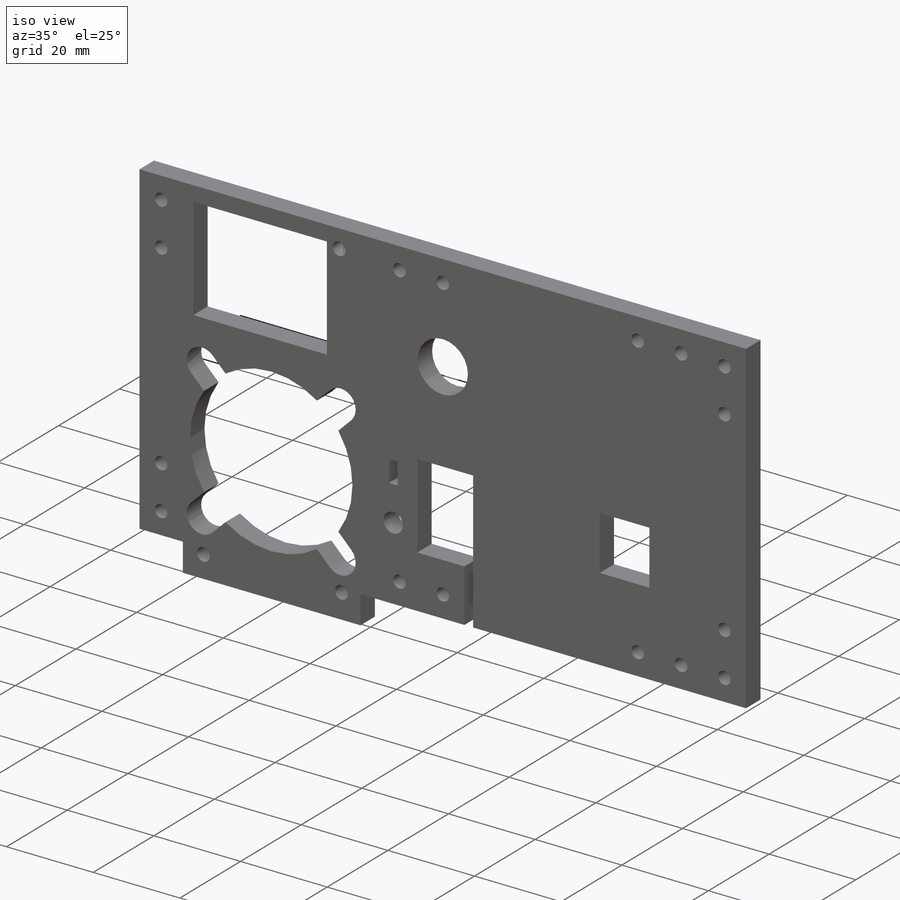
[diagram: iso view]
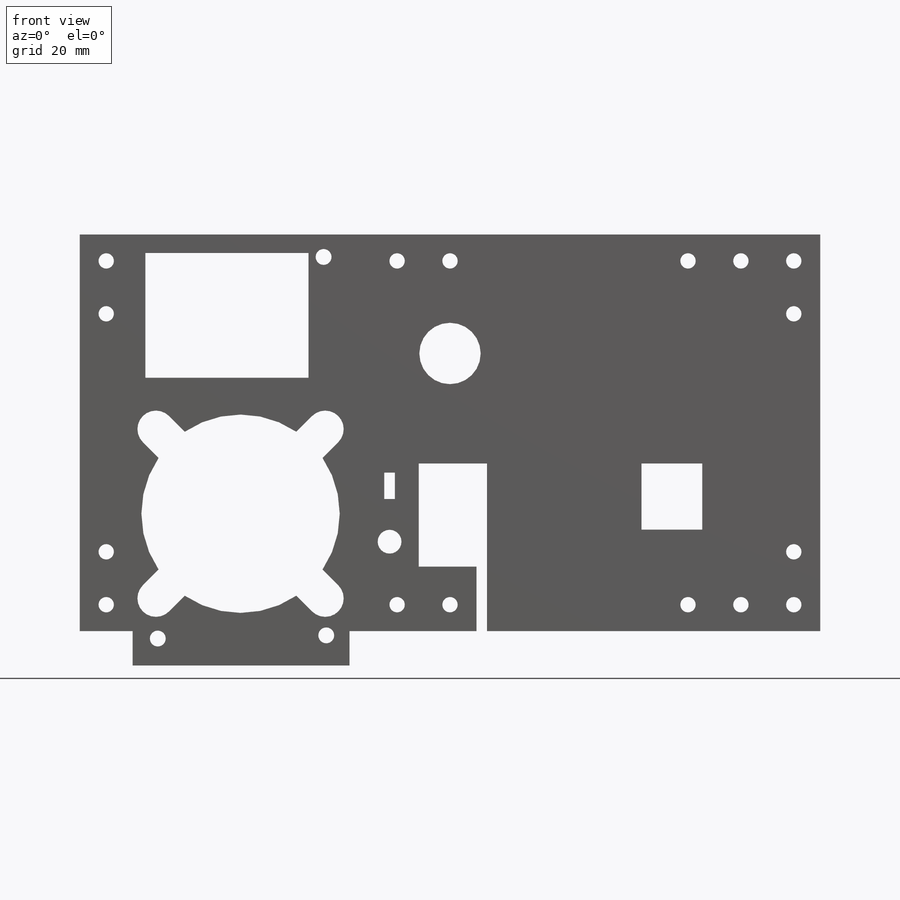
[diagram: front view]
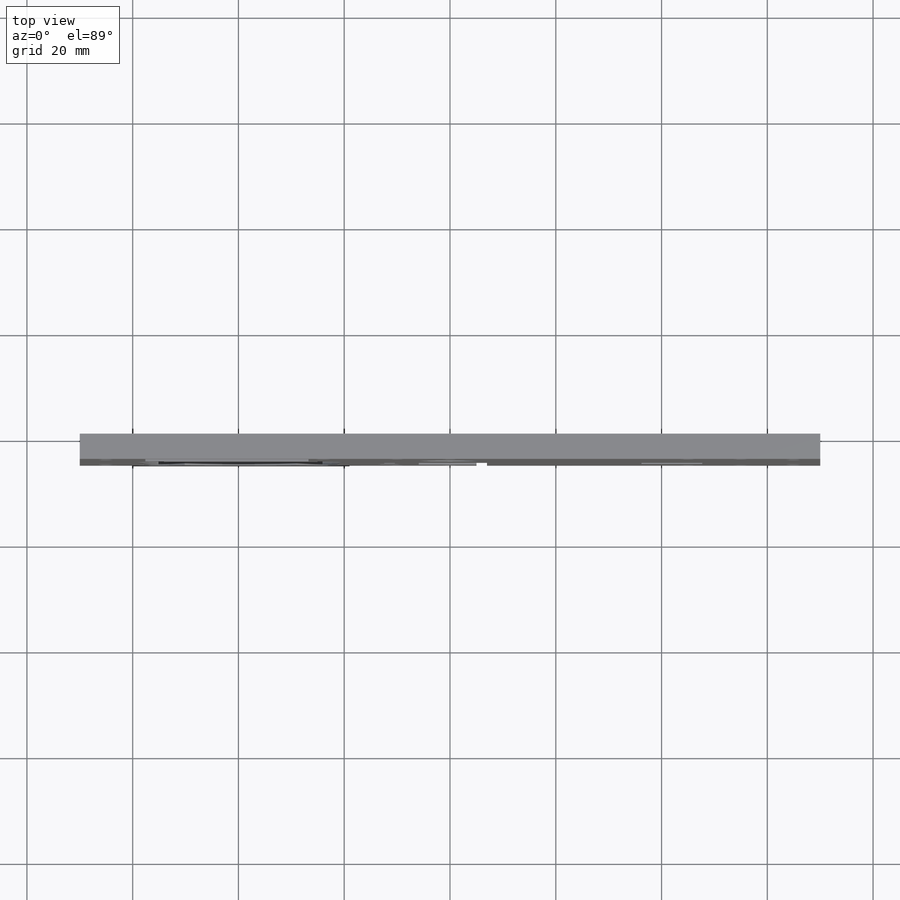
[diagram: top view]
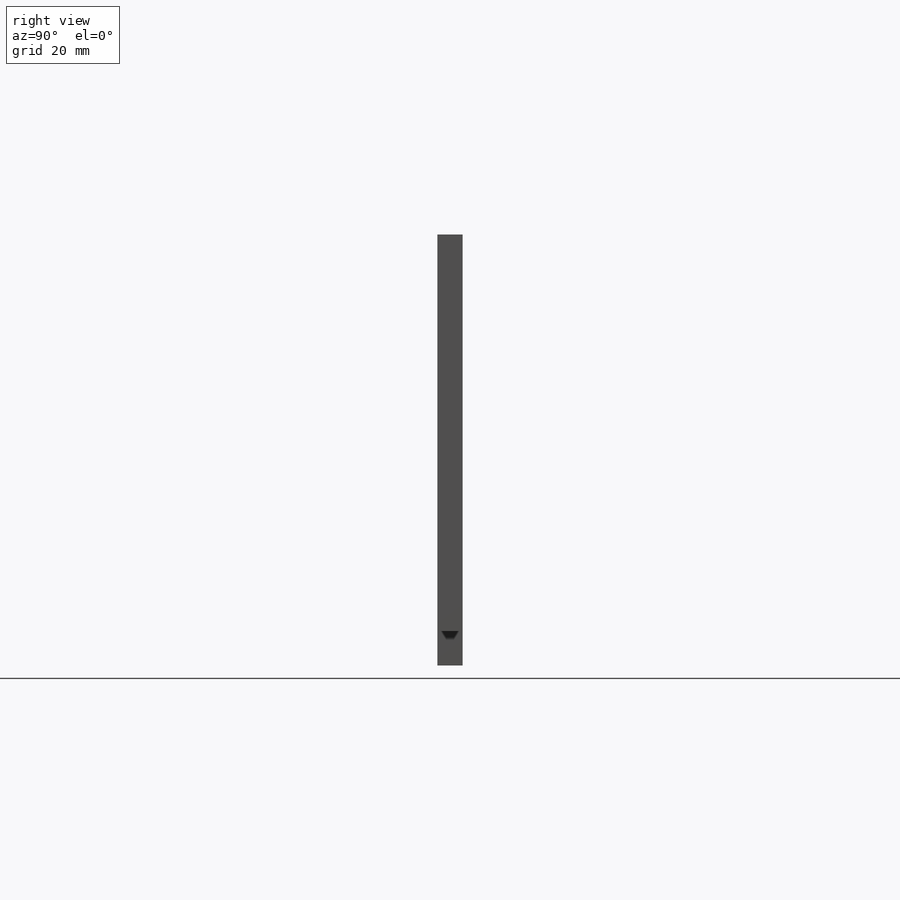
[diagram: right view]
SOLIDWORKS PART (.sldprt)
format: sldprt  version: not decoded by parser v0  size: 396,800 bytes
history: native  units: mm
features: sketch x8, cut_extrude x6, extrude x2, mirror x2, material x1 (+16 scaffold rows collapsed)
feature tree (35):
  scaffold x16  (default folders/planes/origin — collapsed)
  material  "Material <not specified>"
  sketch  "Sketch1"  dims[D1=37.5mm D2=70.0mm]
  extrude  "Boss-Extrude1"  Depth=4.7625mm
  mirror  "Mirror1"
  sketch  "Sketch2"  dims[D3=2.9mm D1=5.0mm D2=5.0mm D4=10.0mm D5=5.0mm D6=85.0mm D7=5.0mm]
  cut_extrude  "Cut-Extrude2"  [1 undecoded]
  mirror  "Mirror7"
  sketch  "Sketch4"  dims[c1.D1=6.5mm c1.D2=15.0mm c1.D3=10.0mm c2.D2=41.0mm]
  extrude  "Boss-Extrude2"  [1 undecoded]
  sketch  "Sketch5"  dims[c1.D8=37.5mm c1.D10=7.0mm c1.D11=7.0mm c2.D10=7.0mm c2.D1=3.5mm c2.D2=10.0mm c2.D3=2.4mm c2.D4=30.85mm c2.D5=23.6mm c2.D6=52.8mm c2.D7=20.4mm c2.D9=32.0mm]
  cut_extrude  "Cut-Extrude3"  [1 undecoded]
  sketch  "Sketch6"  dims[D1=7.0mm D2=~45.254834mm]
  cut_extrude  "Cut-Extrude4"  [1 undecoded]
  sketch  "Sketch7"  dims[D1=7.0mm D2=~45.254834mm]
  cut_extrude  "Cut-Extrude5"  [1 undecoded]
  sketch  "Sketch8"  dims[D5=3.0mm D1=75.8mm D2=76.4mm D3=4.75mm D4=36.6mm D6=36.1mm D7=4.25mm]
  cut_extrude  "Cut-Extrude6"  [1 undecoded]
  sketch  "Sketch9"  dims[c1.D8=4.5mm c1.D12=11.6mm c1.D1=12.9032mm c1.D2=19.5mm c1.D3=6.5mm c1.D4=3.0mm c2.D3=5.0mm c2.D2=19.5mm c2.D1=12.903mm c2.D4=5.0mm c2.D5=8.0mm c2.D6=2.0mm c2.D7=5.0mm c3.D4=5.8mm c3.D5=12.5mm c3.D9=47.7mm c3.D10=11.5mm c3.D11=7.0mm c3.D13=15.0mm]
  cut_extrude  "Cut-Extrude7"  [1 undecoded]
decode coverage: 9 of 18 modeling features carry decoded parameters
note: ~ marks probable driven/reference dimensions
note: 7 parameter values undecoded
summary: no parameter record found for 7 features
note: suppression state not decoded; provenance and decode notes live in map.json
